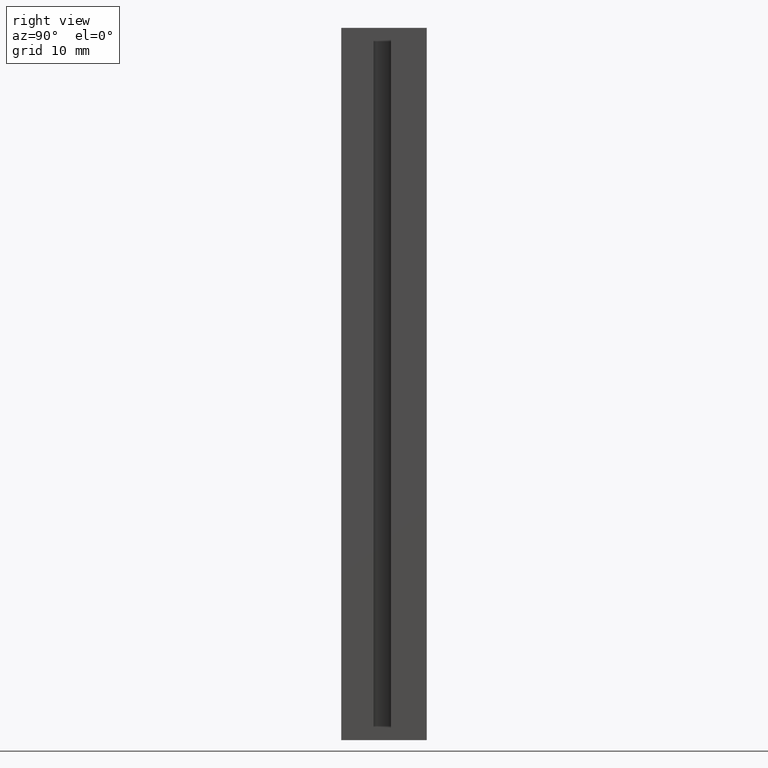
[diagram: clean part render]
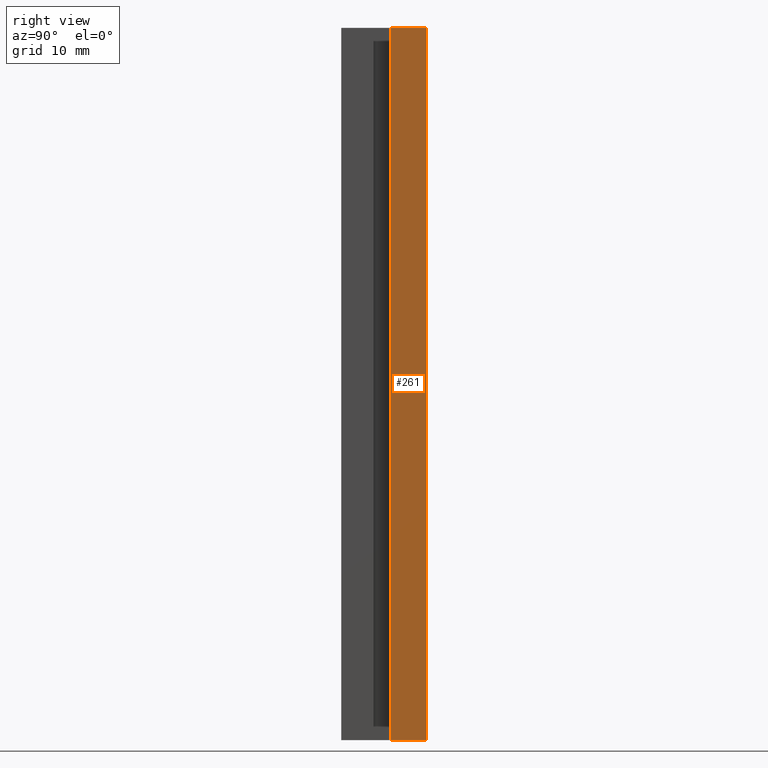
[diagram: same view with one face highlighted and labeled with its STEP entity id]
A machine part, right view. The second image highlights one B-rep face of the part: STEP entity #261.
In plain terms, the highlighted planar face has unit normal (1, 0, 0).
Its self-contained STEP definition (entity closure, byte-faithful):
#15=FACE_OUTER_BOUND('',#29,.T.);
#29=EDGE_LOOP('',(#175,#176,#177,#178));
#43=LINE('',#361,#79);
#44=LINE('',#363,#80);
#45=LINE('',#365,#81);
#46=LINE('',#366,#82);
#79=VECTOR('',#295,5.);
#80=VECTOR('',#296,100.);
#81=VECTOR('',#297,5.);
#82=VECTOR('',#298,100.);
#115=VERTEX_POINT('',#359);
#116=VERTEX_POINT('',#360);
#117=VERTEX_POINT('',#362);
#118=VERTEX_POINT('',#364);
#139=EDGE_CURVE('',#115,#116,#43,.T.);
#140=EDGE_CURVE('',#115,#117,#44,.T.);
#141=EDGE_CURVE('',#118,#117,#45,.T.);
#142=EDGE_CURVE('',#116,#118,#46,.T.);
#175=ORIENTED_EDGE('',*,*,#139,.F.);
#176=ORIENTED_EDGE('',*,*,#140,.T.);
#177=ORIENTED_EDGE('',*,*,#141,.F.);
#178=ORIENTED_EDGE('',*,*,#142,.F.);
#247=PLANE('',#277);
#261=ADVANCED_FACE('',(#15),#247,.T.);
#277=AXIS2_PLACEMENT_3D('',#358,#293,#294);
#293=DIRECTION('center_axis',(1.,0.,0.));
#294=DIRECTION('ref_axis',(0.,1.,0.));
#295=DIRECTION('',(0.,-1.,0.));
#296=DIRECTION('',(0.,0.,1.));
#297=DIRECTION('',(0.,1.,0.));
#298=DIRECTION('',(0.,0.,1.));
#358=CARTESIAN_POINT('Origin',(10.,1.25,0.));
#359=CARTESIAN_POINT('',(10.,6.25,0.));
#360=CARTESIAN_POINT('',(10.,1.25,0.));
#361=CARTESIAN_POINT('',(10.,6.25,0.));
#362=CARTESIAN_POINT('',(10.,6.25,100.));
#363=CARTESIAN_POINT('',(10.,6.25,0.));
#364=CARTESIAN_POINT('',(10.,1.25,100.));
#365=CARTESIAN_POINT('',(10.,6.25,100.));
#366=CARTESIAN_POINT('',(10.,1.25,0.));